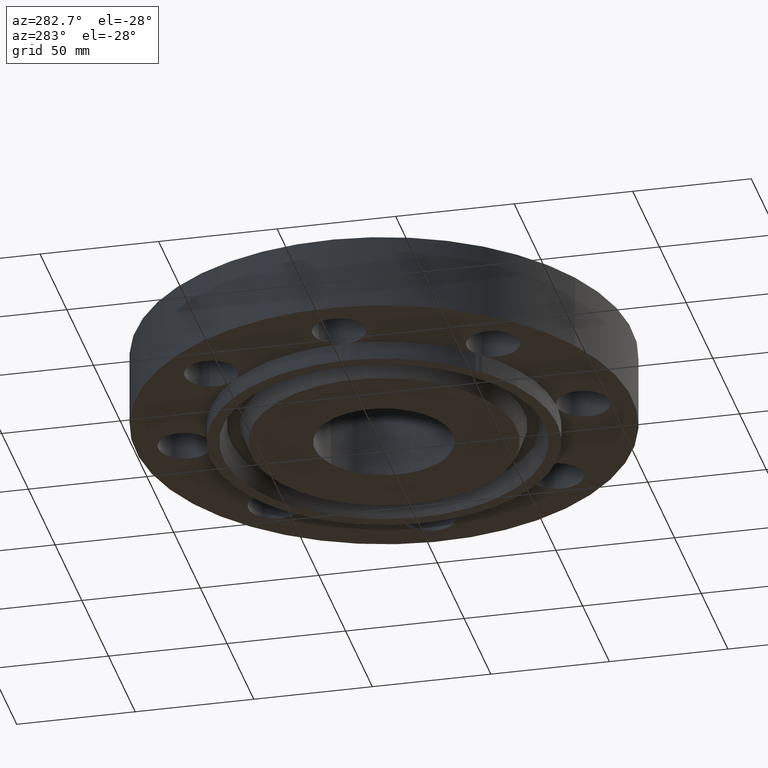
[diagram: clean part render]
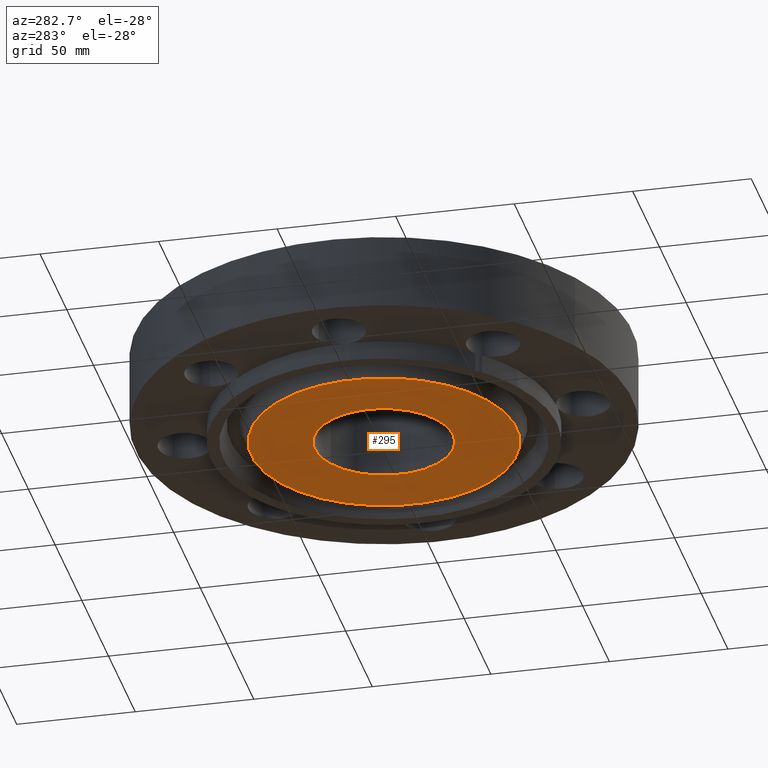
[diagram: same view with one face highlighted and labeled with its STEP entity id]
A machine part, auxiliary view. The second image highlights one B-rep face of the part: STEP entity #295.
In plain terms, the highlighted planar face has unit normal (0, 0, -1).
Its self-contained STEP definition (entity closure, byte-faithful):
#173=AXIS2_PLACEMENT_3D('Circle Axis2P3D',#171,#172,$) ;
#271=AXIS2_PLACEMENT_3D('Plane Axis2P3D',#268,#269,#270) ;
#275=AXIS2_PLACEMENT_3D('Circle Axis2P3D',#273,#274,$) ;
#284=AXIS2_PLACEMENT_3D('Circle Axis2P3D',#282,#283,$) ;
#168=CARTESIAN_POINT('Vertex',(0.551339369395,1.00921994617,-0.312999999965)) ;
#171=CARTESIAN_POINT('Axis2P3D Location',(0.,0.,-0.312999999965)) ;
#175=CARTESIAN_POINT('Vertex',(-0.551339369414,-1.00921994614,-0.313000000001)) ;
#203=CARTESIAN_POINT('Control Point',(-0.551339369395,-1.00921994617,-0.313000000001)) ;
#204=CARTESIAN_POINT('Control Point',(-0.709867267833,-0.922615760547,-0.312999999999)) ;
#205=CARTESIAN_POINT('Control Point',(-0.851390474187,-0.804884694851,-0.312999999997)) ;
#206=CARTESIAN_POINT('Control Point',(-0.967732423309,-0.66045368378,-0.312999999996)) ;
#207=CARTESIAN_POINT('Control Point',(-1.13751623554,-0.333756355705,-0.312999999992)) ;
#208=CARTESIAN_POINT('Control Point',(-1.17116340354,0.0328845519327,-0.312999999988)) ;
#209=CARTESIAN_POINT('Control Point',(-1.15130143736,0.217278880436,-0.312999999987)) ;
#210=CARTESIAN_POINT('Control Point',(-1.04034682624,0.568344061478,-0.312999999983)) ;
#211=CARTESIAN_POINT('Control Point',(-0.804884694852,0.851390474187,-0.312999999979)) ;
#212=CARTESIAN_POINT('Control Point',(-0.66045368378,0.967732423309,-0.312999999978)) ;
#213=CARTESIAN_POINT('Control Point',(-0.333756355705,1.13751623554,-0.312999999974)) ;
#214=CARTESIAN_POINT('Control Point',(0.0328845519319,1.17116340354,-0.31299999997)) ;
#215=CARTESIAN_POINT('Control Point',(0.217278880435,1.15130143736,-0.312999999969)) ;
#216=CARTESIAN_POINT('Control Point',(0.392811470956,1.0958241318,-0.312999999967)) ;
#217=CARTESIAN_POINT('Control Point',(0.551339369394,1.00921994617,-0.312999999965)) ;
#268=CARTESIAN_POINT('Axis2P3D Location',(0.,1.15,-0.313000000001)) ;
#273=CARTESIAN_POINT('Axis2P3D Location',(1.28117988659E-011,8.46608872246E-012,-0.313000000001)) ;
#277=CARTESIAN_POINT('Vertex',(-1.05617446158,1.93331438385,-0.313000000001)) ;
#279=CARTESIAN_POINT('Vertex',(1.05617446158,-1.93331438384,-0.313000000001)) ;
#282=CARTESIAN_POINT('Axis2P3D Location',(-1.28117988659E-011,-5.53272213695E-012,-0.313000000001)) ;
#172=DIRECTION('Axis2P3D Direction',(0.,0.,-0.0393700787402)) ;
#269=DIRECTION('Axis2P3D Direction',(0.,0.,-0.0393700787402)) ;
#270=DIRECTION('Axis2P3D XDirection',(0.0393700787402,0.,0.)) ;
#274=DIRECTION('Axis2P3D Direction',(0.,0.,-0.0393700787402)) ;
#283=DIRECTION('Axis2P3D Direction',(0.,0.,-0.0393700787402)) ;
#288=ORIENTED_EDGE('',*,*,#281,.T.) ;
#289=ORIENTED_EDGE('',*,*,#286,.T.) ;
#292=ORIENTED_EDGE('',*,*,#177,.F.) ;
#293=ORIENTED_EDGE('',*,*,#218,.F.) ;
#294=FACE_BOUND('',#291,.T.) ;
#295=ADVANCED_FACE('PartBody',(#290,#294),#272,.T.) ;
#202=B_SPLINE_CURVE_WITH_KNOTS('',5,(#203,#204,#205,#206,#207,#208,#209,#210,#211,#212,#213,#214,#215,#216,#217),.UNSPECIFIED.,.F.,.U.,(6,3,3,3,6),(-45.8829607057,-22.9414803528,0.,22.9414803528,45.8829607057),.UNSPECIFIED.) ;
#174=CIRCLE('generated circle',#173,1.15) ;
#276=CIRCLE('generated circle',#275,2.20300000001) ;
#285=CIRCLE('generated circle',#284,2.20300000001) ;
#177=EDGE_CURVE('',#169,#176,#174,.T.) ;
#218=EDGE_CURVE('',#176,#169,#202,.T.) ;
#281=EDGE_CURVE('',#278,#280,#276,.T.) ;
#286=EDGE_CURVE('',#280,#278,#285,.T.) ;
#287=EDGE_LOOP('',(#288,#289)) ;
#291=EDGE_LOOP('',(#292,#293)) ;
#290=FACE_OUTER_BOUND('',#287,.T.) ;
#272=PLANE('',#271) ;
#169=VERTEX_POINT('',#168) ;
#176=VERTEX_POINT('',#175) ;
#278=VERTEX_POINT('',#277) ;
#280=VERTEX_POINT('',#279) ;